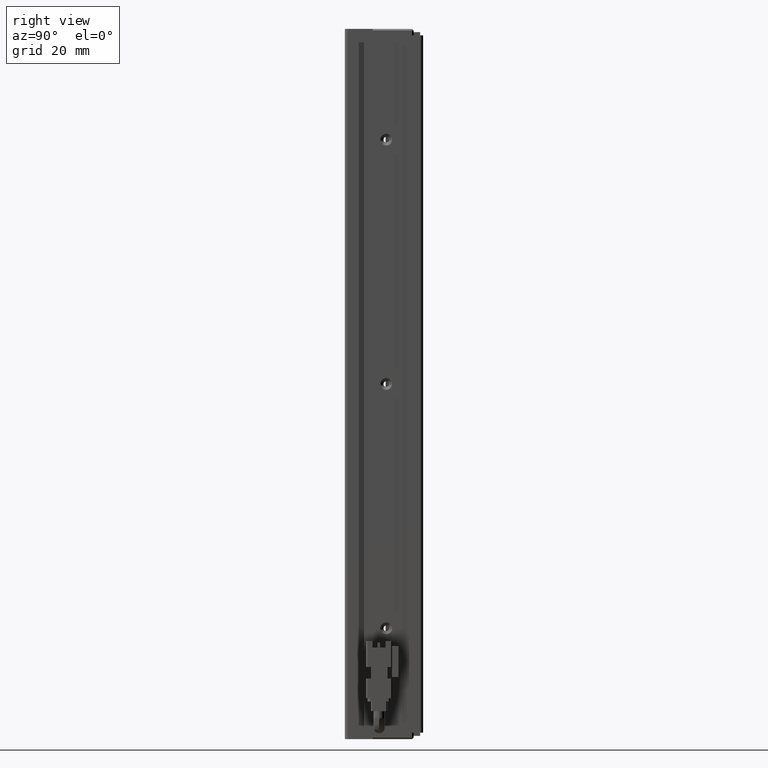
[diagram: clean part render]
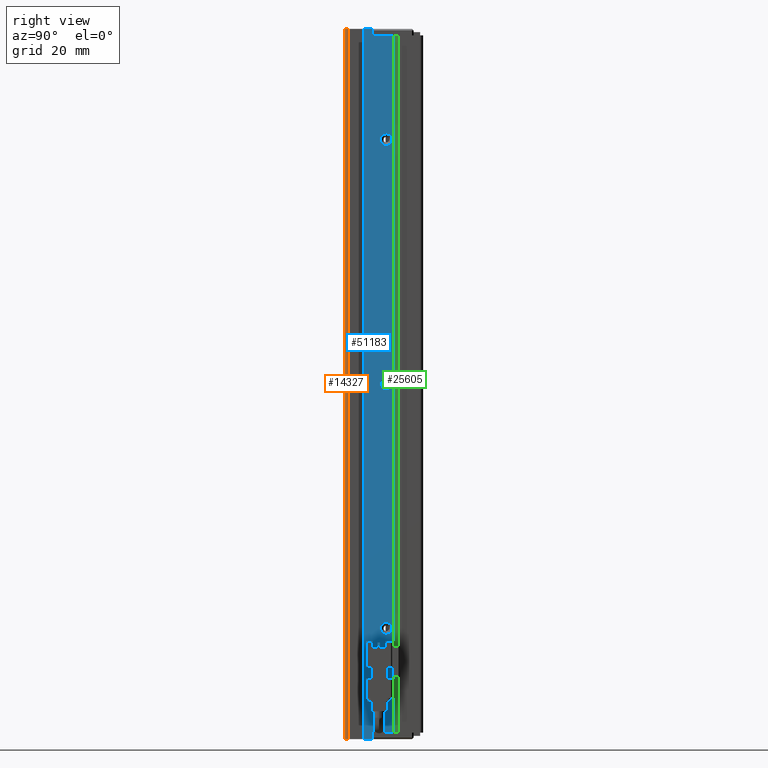
[diagram: same view with three faces highlighted in distinct colors, each labeled with its STEP entity id]
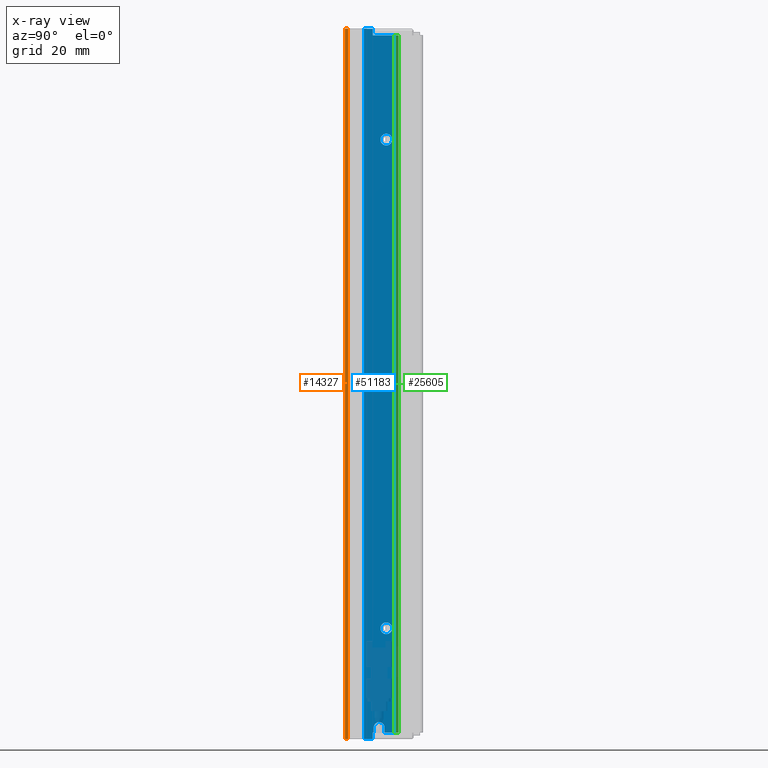
[diagram: x-ray of the same camera — body ghosted, the three highlighted faces saturated]
A machine part, right view with three faces highlighted in distinct colors.
The next image is the same camera in x-ray (body ghosted, the three faces saturated) — at least one of them is partly hidden behind the body in this view.
Their STEP definitions:

[orange] entity #14327 — the highlighted cylindrical surface (edge-blend (fillet) strip) has radius 1 mm, axis along (-0, -0, -1).
#85 = DIRECTION ( 'NONE',  ( -1.000000000000000000, 0.0000000000000000000, 0.0000000000000000000 ) ) ;
#437 = CARTESIAN_POINT ( 'NONE',  ( 50.42537974683541800, 10.99073232304837000, -224.0000000000000000 ) ) ;
#809 = DIRECTION ( 'NONE',  ( -0.0000000000000000000, 0.0000000000000000000, -1.000000000000000000 ) ) ;
#2120 = EDGE_CURVE ( 'NONE', #53816, #48418, #7443, .T. ) ;
#2504 = VECTOR ( 'NONE', #22281, 1000.000000000000000 ) ;
#5299 = CARTESIAN_POINT ( 'NONE',  ( 51.42537974683541800, 11.99073232304837000, -6.000000000000005300 ) ) ;
#5861 = DIRECTION ( 'NONE',  ( -1.000000000000000000, 0.0000000000000000000, 0.0000000000000000000 ) ) ;
#7443 = CIRCLE ( 'NONE', #21130, 1.000000000000000900 ) ;
#8947 = EDGE_CURVE ( 'NONE', #17746, #19928, #32620, .T. ) ;
#13940 = EDGE_LOOP ( 'NONE', ( #51119, #30793, #48757, #23384 ) ) ;
#14327 = ADVANCED_FACE ( 'NONE', ( #33931 ), #25991, .T. ) ;
#17184 = CARTESIAN_POINT ( 'NONE',  ( 50.42537974683541800, 11.99073232304837000, -6.000000000000005300 ) ) ;
#17499 = CARTESIAN_POINT ( 'NONE',  ( 50.42537974683541800, 11.99073232304837000, -224.0000000000000000 ) ) ;
#17746 = VERTEX_POINT ( 'NONE', #27213 ) ;
#19928 = VERTEX_POINT ( 'NONE', #23358 ) ;
#20907 = EDGE_CURVE ( 'NONE', #48418, #17746, #32000, .T. ) ;
#21130 = AXIS2_PLACEMENT_3D ( 'NONE', #17499, #34465, #34838 ) ;
#22281 = DIRECTION ( 'NONE',  ( 0.0000000000000000000, 0.0000000000000000000, 1.000000000000000000 ) ) ;
#23358 = CARTESIAN_POINT ( 'NONE',  ( 50.42537974683541800, 10.99073232304837000, -6.000000000000005300 ) ) ;
#23384 = ORIENTED_EDGE ( 'NONE', *, *, #20907, .T. ) ;
#23729 = EDGE_CURVE ( 'NONE', #19928, #53816, #31057, .T. ) ;
#25991 = CYLINDRICAL_SURFACE ( 'NONE', #39922, 1.000000000000000900 ) ;
#27213 = CARTESIAN_POINT ( 'NONE',  ( 51.42537974683541800, 11.99073232304837000, -6.000000000000005300 ) ) ;
#27900 = CARTESIAN_POINT ( 'NONE',  ( 51.42537974683541800, 11.99073232304837000, -224.0000000000000000 ) ) ;
#30793 = ORIENTED_EDGE ( 'NONE', *, *, #23729, .T. ) ;
#31057 = LINE ( 'NONE', #34127, #37621 ) ;
#32000 = LINE ( 'NONE', #5299, #2504 ) ;
#32620 = CIRCLE ( 'NONE', #48815, 1.000000000000000900 ) ;
#33931 = FACE_OUTER_BOUND ( 'NONE', #13940, .T. ) ;
#34127 = CARTESIAN_POINT ( 'NONE',  ( 50.42537974683541800, 10.99073232304837000, -6.000000000000005300 ) ) ;
#34465 = DIRECTION ( 'NONE',  ( 0.0000000000000000000, 0.0000000000000000000, 1.000000000000000000 ) ) ;
#34838 = DIRECTION ( 'NONE',  ( -1.000000000000000000, 0.0000000000000000000, 0.0000000000000000000 ) ) ;
#37621 = VECTOR ( 'NONE', #809, 1000.000000000000000 ) ;
#39922 = AXIS2_PLACEMENT_3D ( 'NONE', #17184, #42280, #85 ) ;
#42280 = DIRECTION ( 'NONE',  ( -0.0000000000000000000, -0.0000000000000000000, -1.000000000000000000 ) ) ;
#43519 = DIRECTION ( 'NONE',  ( -0.0000000000000000000, -0.0000000000000000000, -1.000000000000000000 ) ) ;
#48418 = VERTEX_POINT ( 'NONE', #27900 ) ;
#48757 = ORIENTED_EDGE ( 'NONE', *, *, #2120, .T. ) ;
#48815 = AXIS2_PLACEMENT_3D ( 'NONE', #51912, #43519, #5861 ) ;
#51119 = ORIENTED_EDGE ( 'NONE', *, *, #8947, .T. ) ;
#51912 = CARTESIAN_POINT ( 'NONE',  ( 50.42537974683541800, 11.99073232304837000, -6.000000000000005300 ) ) ;
#53816 = VERTEX_POINT ( 'NONE', #437 ) ;

[blue] entity #51183 — the highlighted planar face has unit normal (-1, 0, 0).
#1091 = DIRECTION ( 'NONE',  ( 1.000000000000000000, 0.0000000000000000000, 0.0000000000000000000 ) ) ;
#1178 = VERTEX_POINT ( 'NONE', #39369 ) ;
#1209 = DIRECTION ( 'NONE',  ( 1.000000000000000000, 0.0000000000000000000, 0.0000000000000000000 ) ) ;
#1429 = EDGE_CURVE ( 'NONE', #48668, #24820, #40410, .T. ) ;
#1477 = EDGE_CURVE ( 'NONE', #48668, #44956, #32473, .T. ) ;
#1913 = VERTEX_POINT ( 'NONE', #51841 ) ;
#2109 = DIRECTION ( 'NONE',  ( -0.0000000000000000000, 0.0000000000000000000, 1.000000000000000000 ) ) ;
#2484 = LINE ( 'NONE', #27146, #37259 ) ;
#2911 = CIRCLE ( 'NONE', #36180, 1.799999999934687200 ) ;
#2949 = ORIENTED_EDGE ( 'NONE', *, *, #36708, .F. ) ;
#3167 = LINE ( 'NONE', #26149, #30001 ) ;
#3262 = DIRECTION ( 'NONE',  ( 0.0000000000000000000, 0.0000000000000000000, -1.000000000000000000 ) ) ;
#3472 = CIRCLE ( 'NONE', #49226, 1.800000000002910400 ) ;
#3563 = DIRECTION ( 'NONE',  ( 0.0000000000000000000, 0.0000000000000000000, -1.000000000000000000 ) ) ;
#4057 = ORIENTED_EDGE ( 'NONE', *, *, #9487, .F. ) ;
#4257 = DIRECTION ( 'NONE',  ( -1.000000000000000000, 0.0000000000000000000, 0.0000000000000000000 ) ) ;
#4804 = CARTESIAN_POINT ( 'NONE',  ( 51.42537974681450700, 23.69073232304837300, -191.7999999999347000 ) ) ;
#5242 = CARTESIAN_POINT ( 'NONE',  ( 51.42537974683541800, 19.49073232304837000, -224.0000000000000000 ) ) ;
#5748 = EDGE_CURVE ( 'NONE', #32993, #16082, #18290, .T. ) ;
#6103 = ORIENTED_EDGE ( 'NONE', *, *, #36409, .F. ) ;
#6243 = DIRECTION ( 'NONE',  ( -0.0000000000000000000, -1.000000000000000000, 0.0000000000000000000 ) ) ;
#6579 = EDGE_CURVE ( 'NONE', #1178, #52495, #3167, .T. ) ;
#7115 = CARTESIAN_POINT ( 'NONE',  ( 51.42537974683541800, 16.79073232304837000, -6.000000000000005300 ) ) ;
#7309 = EDGE_LOOP ( 'NONE', ( #33265, #45335 ) ) ;
#7457 = CARTESIAN_POINT ( 'NONE',  ( 51.42537974681450700, 23.69073232304837300, -190.0000000000000000 ) ) ;
#7486 = EDGE_LOOP ( 'NONE', ( #47287, #53434 ) ) ;
#7541 = CARTESIAN_POINT ( 'NONE',  ( 51.42537974683541800, 25.99073232304837300, -8.000000000000007100 ) ) ;
#7589 = CARTESIAN_POINT ( 'NONE',  ( 51.42537974683541800, 16.79073232304837000, -224.0000000000000000 ) ) ;
#8150 = VECTOR ( 'NONE', #51317, 1000.000000000000000 ) ;
#8519 = VERTEX_POINT ( 'NONE', #32947 ) ;
#8540 = EDGE_CURVE ( 'NONE', #9812, #1913, #30734, .T. ) ;
#9487 = EDGE_CURVE ( 'NONE', #24820, #44052, #16613, .T. ) ;
#9562 = DIRECTION ( 'NONE',  ( 0.0000000000000000000, 0.0000000000000000000, -1.000000000000000000 ) ) ;
#9667 = CARTESIAN_POINT ( 'NONE',  ( 51.42537974683541100, 23.14073232304837200, -222.0000000000000000 ) ) ;
#9812 = VERTEX_POINT ( 'NONE', #7589 ) ;
#9957 = CIRCLE ( 'NONE', #51243, 1.799999999957433000 ) ;
#10018 = CARTESIAN_POINT ( 'NONE',  ( 51.42537974683541800, 7.083797468354437600, -6.000000000000005300 ) ) ;
#10101 = CARTESIAN_POINT ( 'NONE',  ( 51.42537974681450700, 23.69073232304837300, -40.00000000000000700 ) ) ;
#11074 = DIRECTION ( 'NONE',  ( 1.000000000000000000, 0.0000000000000000000, 0.0000000000000000000 ) ) ;
#11754 = CIRCLE ( 'NONE', #20489, 1.799999999934687200 ) ;
#12131 = LINE ( 'NONE', #49625, #24661 ) ;
#12391 = CARTESIAN_POINT ( 'NONE',  ( 51.42537974683541800, 7.083797468354437600, -8.000000000000007100 ) ) ;
#12450 = ORIENTED_EDGE ( 'NONE', *, *, #44855, .F. ) ;
#13109 = CARTESIAN_POINT ( 'NONE',  ( 51.42537974683541800, 7.083797468354437600, -6.000000000000005300 ) ) ;
#13212 = DIRECTION ( 'NONE',  ( 0.0000000000000000000, 0.0000000000000000000, -1.000000000000000000 ) ) ;
#13223 = DIRECTION ( 'NONE',  ( -0.0000000000000000000, -0.0000000000000000000, -1.000000000000000000 ) ) ;
#13334 = AXIS2_PLACEMENT_3D ( 'NONE', #19022, #27662, #40256 ) ;
#13398 = CARTESIAN_POINT ( 'NONE',  ( 51.42537974675766300, 23.69073232304837300, -115.0000000000000000 ) ) ;
#13541 = CARTESIAN_POINT ( 'NONE',  ( 51.42537974681450700, 23.69073232304837300, -188.2000000000653000 ) ) ;
#13759 = EDGE_LOOP ( 'NONE', ( #15400, #50217, #47285, #27323, #4057, #50079, #34256, #2949, #27029, #12450, #14800, #25421 ) ) ;
#14374 = EDGE_CURVE ( 'NONE', #1178, #45141, #35938, .T. ) ;
#14800 = ORIENTED_EDGE ( 'NONE', *, *, #39108, .T. ) ;
#15203 = EDGE_CURVE ( 'NONE', #50844, #48840, #11754, .T. ) ;
#15400 = ORIENTED_EDGE ( 'NONE', *, *, #34563, .T. ) ;
#16082 = VERTEX_POINT ( 'NONE', #52148 ) ;
#16613 = LINE ( 'NONE', #30005, #48980 ) ;
#16785 = CARTESIAN_POINT ( 'NONE',  ( 51.42537974683541800, 19.49073232304837000, -6.000000000000005300 ) ) ;
#17644 = EDGE_CURVE ( 'NONE', #44052, #52495, #21139, .T. ) ;
#17900 = CARTESIAN_POINT ( 'NONE',  ( 51.42537974675766300, 23.69073232304837300, -116.8000000000029100 ) ) ;
#17977 = AXIS2_PLACEMENT_3D ( 'NONE', #45984, #50368, #20723 ) ;
#18019 = CARTESIAN_POINT ( 'NONE',  ( 51.42537974683541800, 19.84073232304836800, -222.0000000000000000 ) ) ;
#18290 = CIRCLE ( 'NONE', #37572, 1.799999999957433000 ) ;
#19022 = CARTESIAN_POINT ( 'NONE',  ( 51.42537974675766300, 23.69073232304837300, -115.0000000000000000 ) ) ;
#19307 = FACE_BOUND ( 'NONE', #7486, .T. ) ;
#19388 = CIRCLE ( 'NONE', #13334, 1.800000000002910400 ) ;
#19469 = CARTESIAN_POINT ( 'NONE',  ( 51.42537974681450700, 23.69073232304837300, -38.20000000004257100 ) ) ;
#19896 = VECTOR ( 'NONE', #6243, 1000.000000000000000 ) ;
#20489 = AXIS2_PLACEMENT_3D ( 'NONE', #7457, #11074, #45501 ) ;
#20723 = DIRECTION ( 'NONE',  ( 0.0000000000000000000, 1.000000000000000000, 0.0000000000000000000 ) ) ;
#21139 = LINE ( 'NONE', #51692, #23802 ) ;
#21332 = VERTEX_POINT ( 'NONE', #5242 ) ;
#22074 = DIRECTION ( 'NONE',  ( -0.0000000000000000000, -1.000000000000000000, 0.0000000000000000000 ) ) ;
#22137 = CARTESIAN_POINT ( 'NONE',  ( 51.42537974683541800, 19.84073232304837100, -220.4499999999999900 ) ) ;
#22516 = VERTEX_POINT ( 'NONE', #24909 ) ;
#23492 = VECTOR ( 'NONE', #24681, 1000.000000000000000 ) ;
#23802 = VECTOR ( 'NONE', #22074, 1000.000000000000000 ) ;
#24413 = DIRECTION ( 'NONE',  ( 1.000000000000000000, 0.0000000000000000000, 0.0000000000000000000 ) ) ;
#24443 = CARTESIAN_POINT ( 'NONE',  ( 51.42537974681450700, 23.69073232304837300, -190.0000000000000000 ) ) ;
#24480 = LINE ( 'NONE', #10018, #30318 ) ;
#24661 = VECTOR ( 'NONE', #32848, 1000.000000000000000 ) ;
#24681 = DIRECTION ( 'NONE',  ( 0.0000000000000000000, 0.0000000000000000000, 1.000000000000000000 ) ) ;
#24820 = VERTEX_POINT ( 'NONE', #7541 ) ;
#24909 = CARTESIAN_POINT ( 'NONE',  ( 51.42537974683541800, 19.49073232304837000, -222.0000000000000000 ) ) ;
#24966 = CARTESIAN_POINT ( 'NONE',  ( 51.42537974683541800, 19.49073232304837000, -8.000000000000007100 ) ) ;
#24985 = ORIENTED_EDGE ( 'NONE', *, *, #15203, .F. ) ;
#25421 = ORIENTED_EDGE ( 'NONE', *, *, #40187, .F. ) ;
#26149 = CARTESIAN_POINT ( 'NONE',  ( 51.42537974683541100, 23.14073232304837200, -222.0000000000000000 ) ) ;
#26299 = CARTESIAN_POINT ( 'NONE',  ( 51.42537974683541800, 19.84073232304837100, -222.0000000000000000 ) ) ;
#27029 = ORIENTED_EDGE ( 'NONE', *, *, #8540, .F. ) ;
#27146 = CARTESIAN_POINT ( 'NONE',  ( 51.42537974683541800, 19.49073232304837000, -6.000000000000005300 ) ) ;
#27323 = ORIENTED_EDGE ( 'NONE', *, *, #17644, .F. ) ;
#27662 = DIRECTION ( 'NONE',  ( 1.000000000000000000, 0.0000000000000000000, 0.0000000000000000000 ) ) ;
#27899 = CARTESIAN_POINT ( 'NONE',  ( 51.42537974681450700, 23.69073232304837300, -40.00000000000000700 ) ) ;
#28537 = FACE_OUTER_BOUND ( 'NONE', #13759, .T. ) ;
#29714 = PLANE ( 'NONE',  #43468 ) ;
#30001 = VECTOR ( 'NONE', #39629, 1000.000000000000000 ) ;
#30005 = CARTESIAN_POINT ( 'NONE',  ( 51.42537974683541800, 25.99073232304837300, -6.000000000000005300 ) ) ;
#30318 = VECTOR ( 'NONE', #43706, 1000.000000000000000 ) ;
#30734 = LINE ( 'NONE', #7115, #23492 ) ;
#31180 = VECTOR ( 'NONE', #33935, 1000.000000000000000 ) ;
#32473 = LINE ( 'NONE', #16785, #31180 ) ;
#32848 = DIRECTION ( 'NONE',  ( -0.0000000000000000000, -1.000000000000000000, 0.0000000000000000000 ) ) ;
#32947 = CARTESIAN_POINT ( 'NONE',  ( 51.42537974675766300, 23.69073232304837300, -113.1999999999970900 ) ) ;
#32993 = VERTEX_POINT ( 'NONE', #19469 ) ;
#33265 = ORIENTED_EDGE ( 'NONE', *, *, #51813, .F. ) ;
#33935 = DIRECTION ( 'NONE',  ( -0.0000000000000000000, 0.0000000000000000000, 1.000000000000000000 ) ) ;
#34256 = ORIENTED_EDGE ( 'NONE', *, *, #1477, .T. ) ;
#34417 = CARTESIAN_POINT ( 'NONE',  ( 51.42537974683541800, 25.99073232304837300, -222.0000000000000000 ) ) ;
#34563 = EDGE_CURVE ( 'NONE', #47935, #45141, #49531, .T. ) ;
#35938 = CIRCLE ( 'NONE', #17977, 1.649999999999998600 ) ;
#36180 = AXIS2_PLACEMENT_3D ( 'NONE', #24443, #53529, #3262 ) ;
#36409 = EDGE_CURVE ( 'NONE', #48840, #50844, #2911, .T. ) ;
#36437 = LINE ( 'NONE', #48372, #19896 ) ;
#36708 = EDGE_CURVE ( 'NONE', #1913, #44956, #24480, .T. ) ;
#36784 = EDGE_CURVE ( 'NONE', #8519, #51367, #3472, .T. ) ;
#37259 = VECTOR ( 'NONE', #2109, 1000.000000000000000 ) ;
#37572 = AXIS2_PLACEMENT_3D ( 'NONE', #27899, #24413, #3563 ) ;
#37673 = DIRECTION ( 'NONE',  ( 0.0000000000000000000, 0.0000000000000000000, 1.000000000000000000 ) ) ;
#38419 = VECTOR ( 'NONE', #51043, 1000.000000000000000 ) ;
#38586 = EDGE_LOOP ( 'NONE', ( #6103, #24985 ) ) ;
#39108 = EDGE_CURVE ( 'NONE', #21332, #22516, #2484, .T. ) ;
#39369 = CARTESIAN_POINT ( 'NONE',  ( 51.42537974683541100, 23.14073232304836800, -220.4499999999999900 ) ) ;
#39629 = DIRECTION ( 'NONE',  ( -0.0000000000000000000, 2.238352872228124300E-015, -1.000000000000000000 ) ) ;
#40187 = EDGE_CURVE ( 'NONE', #47935, #22516, #36437, .T. ) ;
#40256 = DIRECTION ( 'NONE',  ( 0.0000000000000000000, 0.0000000000000000000, -1.000000000000000000 ) ) ;
#40410 = LINE ( 'NONE', #12391, #38419 ) ;
#43468 = AXIS2_PLACEMENT_3D ( 'NONE', #13109, #4257, #37673 ) ;
#43706 = DIRECTION ( 'NONE',  ( 0.0000000000000000000, 1.000000000000000000, -0.0000000000000000000 ) ) ;
#44052 = VERTEX_POINT ( 'NONE', #34417 ) ;
#44855 = EDGE_CURVE ( 'NONE', #21332, #9812, #12131, .T. ) ;
#44956 = VERTEX_POINT ( 'NONE', #50699 ) ;
#45141 = VERTEX_POINT ( 'NONE', #22137 ) ;
#45335 = ORIENTED_EDGE ( 'NONE', *, *, #5748, .F. ) ;
#45501 = DIRECTION ( 'NONE',  ( 0.0000000000000000000, 0.0000000000000000000, -1.000000000000000000 ) ) ;
#45984 = CARTESIAN_POINT ( 'NONE',  ( 51.42537974683541100, 21.49073232304837000, -220.4499999999999900 ) ) ;
#47050 = FACE_BOUND ( 'NONE', #7309, .T. ) ;
#47285 = ORIENTED_EDGE ( 'NONE', *, *, #6579, .T. ) ;
#47287 = ORIENTED_EDGE ( 'NONE', *, *, #49917, .F. ) ;
#47935 = VERTEX_POINT ( 'NONE', #18019 ) ;
#48372 = CARTESIAN_POINT ( 'NONE',  ( 51.42537974683541800, 7.083797468354437600, -222.0000000000000000 ) ) ;
#48668 = VERTEX_POINT ( 'NONE', #24966 ) ;
#48840 = VERTEX_POINT ( 'NONE', #4804 ) ;
#48980 = VECTOR ( 'NONE', #13223, 1000.000000000000000 ) ;
#49226 = AXIS2_PLACEMENT_3D ( 'NONE', #13398, #1091, #13212 ) ;
#49531 = LINE ( 'NONE', #26299, #8150 ) ;
#49625 = CARTESIAN_POINT ( 'NONE',  ( 51.42537974683541800, 7.083797468354437600, -224.0000000000000000 ) ) ;
#49650 = FACE_BOUND ( 'NONE', #38586, .T. ) ;
#49917 = EDGE_CURVE ( 'NONE', #51367, #8519, #19388, .T. ) ;
#50079 = ORIENTED_EDGE ( 'NONE', *, *, #1429, .F. ) ;
#50217 = ORIENTED_EDGE ( 'NONE', *, *, #14374, .F. ) ;
#50368 = DIRECTION ( 'NONE',  ( 1.000000000000000000, 5.687617954022316600E-016, -0.0000000000000000000 ) ) ;
#50699 = CARTESIAN_POINT ( 'NONE',  ( 51.42537974683541800, 19.49073232304837000, -6.000000000000005300 ) ) ;
#50844 = VERTEX_POINT ( 'NONE', #13541 ) ;
#51043 = DIRECTION ( 'NONE',  ( 0.0000000000000000000, 1.000000000000000000, -0.0000000000000000000 ) ) ;
#51183 = ADVANCED_FACE ( 'NONE', ( #49650, #47050, #28537, #19307 ), #29714, .F. ) ;
#51243 = AXIS2_PLACEMENT_3D ( 'NONE', #10101, #1209, #9562 ) ;
#51317 = DIRECTION ( 'NONE',  ( -0.0000000000000000000, 0.0000000000000000000, 1.000000000000000000 ) ) ;
#51367 = VERTEX_POINT ( 'NONE', #17900 ) ;
#51692 = CARTESIAN_POINT ( 'NONE',  ( 51.42537974683541800, 7.083797468354437600, -222.0000000000000000 ) ) ;
#51813 = EDGE_CURVE ( 'NONE', #16082, #32993, #9957, .T. ) ;
#51841 = CARTESIAN_POINT ( 'NONE',  ( 51.42537974683541800, 16.79073232304837000, -6.000000000000005300 ) ) ;
#52148 = CARTESIAN_POINT ( 'NONE',  ( 51.42537974681450700, 23.69073232304837300, -41.79999999995744300 ) ) ;
#52495 = VERTEX_POINT ( 'NONE', #9667 ) ;
#53434 = ORIENTED_EDGE ( 'NONE', *, *, #36784, .F. ) ;
#53529 = DIRECTION ( 'NONE',  ( 1.000000000000000000, 0.0000000000000000000, 0.0000000000000000000 ) ) ;

[green] entity #25605 — the highlighted planar face has unit normal (1, 0, -0).
#590 = CARTESIAN_POINT ( 'NONE',  ( 50.92537974683541800, 27.49073232304837000, -6.000000000000005300 ) ) ;
#1127 = EDGE_CURVE ( 'NONE', #13594, #37728, #22630, .T. ) ;
#2358 = DIRECTION ( 'NONE',  ( -1.156482317317875900E-015, 1.000000000000000000, 0.0000000000000000000 ) ) ;
#3046 = VECTOR ( 'NONE', #35313, 1000.000000000000000 ) ;
#3405 = EDGE_CURVE ( 'NONE', #13594, #13432, #46812, .T. ) ;
#8376 = FACE_OUTER_BOUND ( 'NONE', #39206, .T. ) ;
#8920 = LINE ( 'NONE', #48274, #17374 ) ;
#9840 = CARTESIAN_POINT ( 'NONE',  ( 50.92537974683541800, 27.49073232304837000, -222.0000000000000000 ) ) ;
#9947 = ORIENTED_EDGE ( 'NONE', *, *, #3405, .T. ) ;
#11170 = ORIENTED_EDGE ( 'NONE', *, *, #37818, .T. ) ;
#13116 = VECTOR ( 'NONE', #39888, 1000.000000000000000 ) ;
#13432 = VERTEX_POINT ( 'NONE', #9840 ) ;
#13594 = VERTEX_POINT ( 'NONE', #46496 ) ;
#17374 = VECTOR ( 'NONE', #19278, 1000.000000000000000 ) ;
#19278 = DIRECTION ( 'NONE',  ( 1.156482317317875900E-015, -1.000000000000000000, -0.0000000000000000000 ) ) ;
#19372 = CARTESIAN_POINT ( 'NONE',  ( 50.92537974683544600, 7.083797468354449100, -222.0000000000000000 ) ) ;
#19845 = EDGE_CURVE ( 'NONE', #54401, #37728, #8920, .T. ) ;
#22630 = LINE ( 'NONE', #27337, #3046 ) ;
#23540 = LINE ( 'NONE', #590, #37399 ) ;
#25276 = DIRECTION ( 'NONE',  ( 0.0000000000000000000, 0.0000000000000000000, 1.000000000000000000 ) ) ;
#25605 = ADVANCED_FACE ( 'NONE', ( #8376 ), #39036, .T. ) ;
#27337 = CARTESIAN_POINT ( 'NONE',  ( 50.92537974683541800, 25.99073232304837700, -6.000000000000005300 ) ) ;
#35313 = DIRECTION ( 'NONE',  ( 0.0000000000000000000, 0.0000000000000000000, 1.000000000000000000 ) ) ;
#37399 = VECTOR ( 'NONE', #25276, 1000.000000000000000 ) ;
#37728 = VERTEX_POINT ( 'NONE', #53621 ) ;
#37818 = EDGE_CURVE ( 'NONE', #13432, #54401, #23540, .T. ) ;
#39036 = PLANE ( 'NONE',  #47082 ) ;
#39181 = ORIENTED_EDGE ( 'NONE', *, *, #19845, .T. ) ;
#39206 = EDGE_LOOP ( 'NONE', ( #9947, #11170, #39181, #54169 ) ) ;
#39609 = CARTESIAN_POINT ( 'NONE',  ( 50.92537974683544600, 7.083797468354449100, -6.000000000000005300 ) ) ;
#39888 = DIRECTION ( 'NONE',  ( -1.156482317317875900E-015, 1.000000000000000000, 0.0000000000000000000 ) ) ;
#44792 = CARTESIAN_POINT ( 'NONE',  ( 50.92537974683541800, 27.49073232304837000, -8.000000000000007100 ) ) ;
#46496 = CARTESIAN_POINT ( 'NONE',  ( 50.92537974683541800, 25.99073232304837700, -222.0000000000000000 ) ) ;
#46812 = LINE ( 'NONE', #19372, #13116 ) ;
#47082 = AXIS2_PLACEMENT_3D ( 'NONE', #39609, #52422, #2358 ) ;
#48274 = CARTESIAN_POINT ( 'NONE',  ( 50.92537974683544600, 7.083797468354449100, -8.000000000000007100 ) ) ;
#52422 = DIRECTION ( 'NONE',  ( 1.000000000000000000, 1.156482317317875900E-015, -0.0000000000000000000 ) ) ;
#53621 = CARTESIAN_POINT ( 'NONE',  ( 50.92537974683541800, 25.99073232304837700, -8.000000000000007100 ) ) ;
#54169 = ORIENTED_EDGE ( 'NONE', *, *, #1127, .F. ) ;
#54401 = VERTEX_POINT ( 'NONE', #44792 ) ;